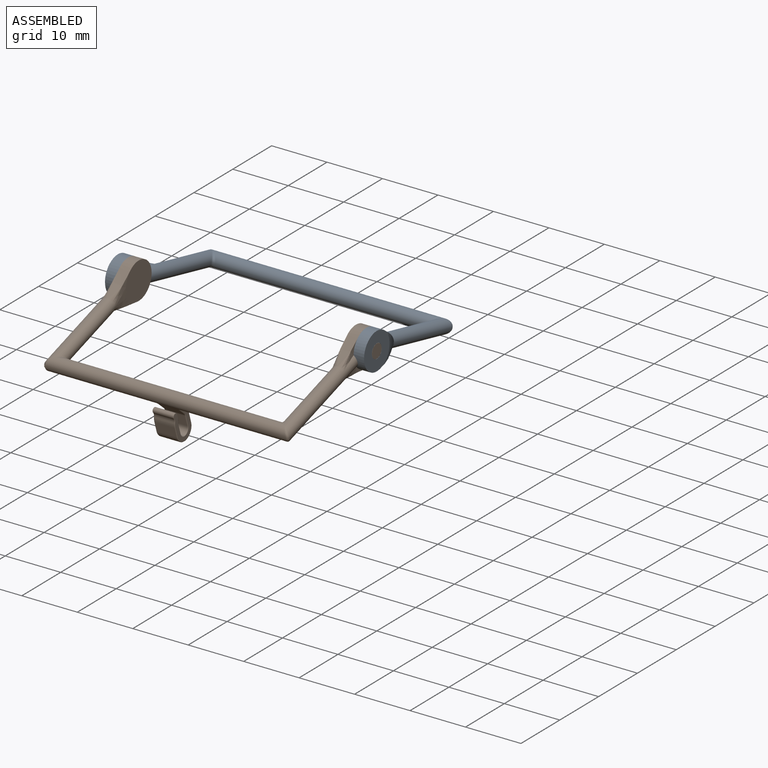
[diagram: assembled view]
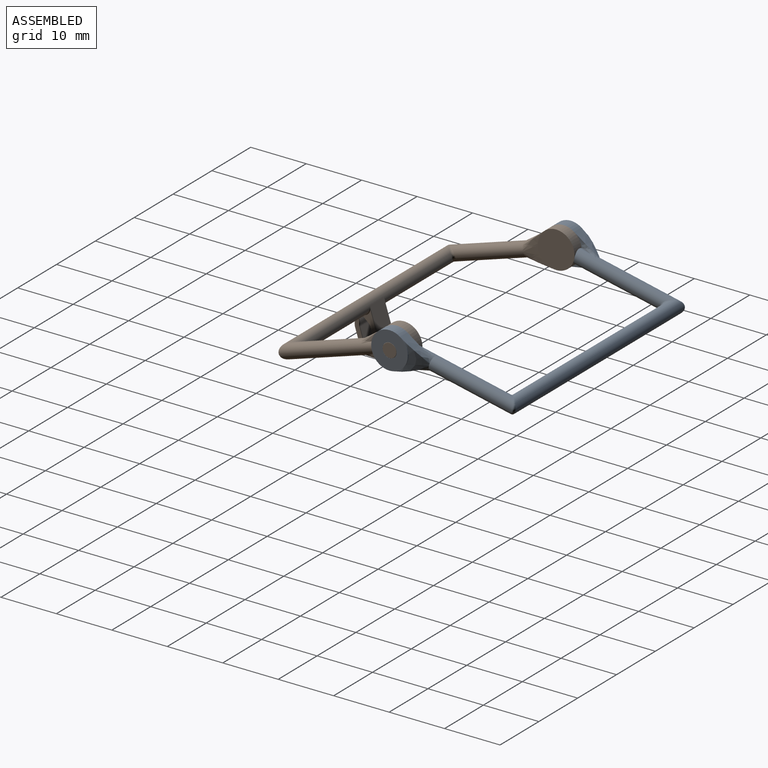
[diagram: assembled view, second angle]
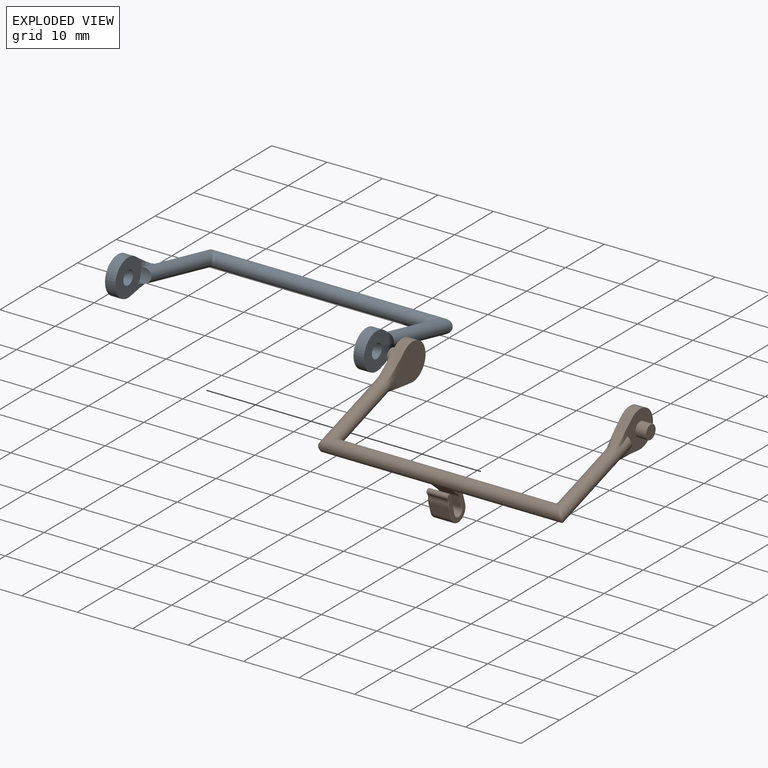
[diagram: exploded view]
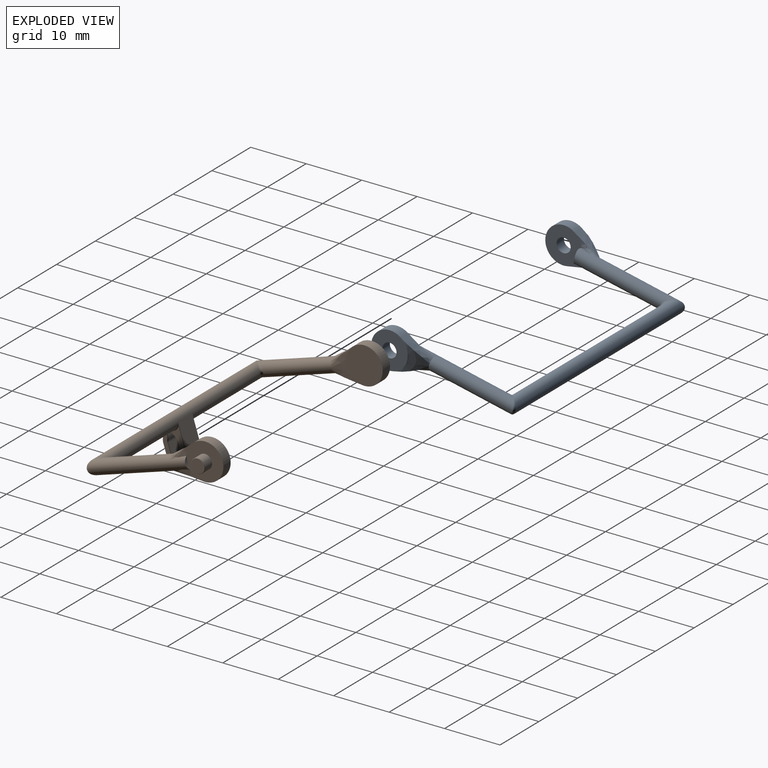
[diagram: exploded view, second angle]
ASSEMBLY  parts=2 mates=2
PART A: 34 faces, bbox 46.9x25.9x7.3 mm
  f0: cylinder r=3.3mm len=5.14mm, axis (-1,0,0), area 0mm2, adj f1,f33
  f1: torus R=3.25mm, axis (-1,0,0), area 0.4mm2, adj f0,f2,f31,f32
  f2: plane 6.51x6.51mm, normal (1,0,0), area 28.2mm2, adj f1,f3,f30,f31,f32
  f3: cylinder r=1.27mm len=2.54mm, axis (-1,0,0), area 15.2mm2, adj f2,f4
  f4: plane 6.8x6.8mm, normal (-1,0,0), area 29.2mm2, adj f3,f5,f25,f26,f27,f28,f29
  f5: bspline ~5.08x2.61mm, area 8.4mm2, adj f4,f6,f25,f29,f30,f33
  f6: cylinder r=1.27mm len=18.67mm, axis (0,1,0), area 127.3mm2, adj f5,f7,f23,f24,f26,f27,f28,f29
  f7: bspline ~2.54x1.65mm, area 0mm2, adj f6,f8
  f8: cylinder r=1.27mm len=41.66mm, axis (-1,0,0), area 324mm2, adj f7,f9,f22,f24
  f9: bspline ~2.54x1.27mm, area 0mm2, adj f8,f10
  f10: cylinder r=1.27mm len=18.67mm, axis (0,-1,0), area 127.3mm2, adj f9,f11,f16,f17,f18,f19,f20,f21
  f11: bspline ~5.08x2.61mm, area 8.4mm2, adj f10,f12,f15,f16,f21
  f12: cylinder r=3.3mm len=6.6mm, axis (1,0,0), area 25.6mm2, adj f11,f13,f15,f16,f17
  f13: plane 6.6x6.6mm, normal (-1,0,0), area 29.2mm2, adj f12,f14
  f14: cylinder r=1.27mm len=2.54mm, axis (1,0,0), area 15.2mm2, adj f13,f15
  f15: plane 6.8x6.8mm, normal (1,0,0), area 29.2mm2, adj f11,f12,f14,f17,f18,f19,f21
  f16: bspline ~6.09x5.08mm, area 10.1mm2, adj f10,f11,f12,f17
  f17: bspline ~5.08x2.61mm, area 8.4mm2, adj f10,f12,f15,f16,f18
  f18: bspline ~5.08x2.72mm, area 3.1mm2, adj f10,f15,f17,f19
  f19: cylinder r=3.3mm len=4.21mm, axis (-1,0,0), area 4.2mm2, adj f10,f15,f18,f20,f21
  f20: cylinder r=1.27mm len=2.51mm, axis (0,-1,0), area 0.7mm2, adj f10,f19,f21
  f21: bspline ~4.94x1.94mm, area 3.1mm2, adj f10,f11,f15,f19,f20
  f22: bspline ~2.54x1.65mm, area 0mm2, adj f8,f10
  f23: cylinder r=1.27mm len=2.51mm, axis (0,1,0), area 0.7mm2, adj f6,f28,f29
  f24: bspline ~2.54x1.27mm, area 0mm2, adj f6,f8
  f25: cylinder r=3.3mm len=6.6mm, axis (-1,0,0), area 24.1mm2, adj f4,f5,f26,f30
  f26: bspline ~5.08x2.61mm, area 8.4mm2, adj f4,f6,f25,f27,f30,f33
  f27: bspline ~5.08x2.72mm, area 3.1mm2, adj f4,f6,f26,f28
  f28: cylinder r=3.3mm len=4.21mm, axis (1,0,0), area 4.2mm2, adj f4,f6,f23,f27,f29
  f29: bspline ~5.08x2.72mm, area 3.1mm2, adj f4,f5,f6,f23,f28
  f30: torus R=3.25mm, axis (-1,0,0), area 1mm2, adj f2,f5,f25,f26,f31,f32
  f31: bspline ~1.24x0.76mm, area 0.1mm2, adj f1,f2,f30,f33
  f32: bspline ~0.99x0.64mm, area 0.1mm2, adj f1,f2,f30,f33
  f33: bspline ~6.09x5.08mm, area 10.2mm2, adj f0,f5,f6,f26,f31,f32
PART B: 80 faces, bbox 46.9x27.3x10.9 mm
  f0: cylinder r=1.27mm len=18.6mm, axis (0,1,0), area 120.3mm2, adj f1,f7,f8,f9,f10,f11,f12,f79
  f1: cylinder r=3.3mm len=4.22mm, axis (1,0,0), area 1mm2, adj f0,f2,f7,f11
  f2: plane 6.8x6.8mm, normal (-1,0,0), area 29.2mm2, adj f1,f3,f5,f7,f11
  f3: cylinder r=1.27mm len=2.54mm, axis (1,0,0), area 15.2mm2, adj f2,f4
  f4: plane 2.54x2.54mm, normal (-1,0,0), area 5.1mm2, adj f3
  f5: cylinder r=3.3mm len=6.6mm, axis (1,0,0), area 25.3mm2, adj f2,f6,f8,f10
  f6: plane 6.61x6.61mm, normal (1,0,0), area 34.3mm2, adj f5,f8,f9,f10
  f7: bspline ~5.08x3.55mm, area 3.2mm2, adj f0,f1,f2,f8
  f8: bspline ~5.08x2.23mm, area 9.8mm2, adj f0,f5,f6,f7,f9
  f9: bspline ~6.22x5.08mm, area 10.9mm2, adj f0,f6,f8,f10
  f10: bspline ~5.08x2.23mm, area 9.8mm2, adj f0,f5,f6,f9,f11
  f11: bspline ~5.08x3.55mm, area 3mm2, adj f0,f1,f2,f10
  f12: bspline ~2.54x1.27mm, area 0.9mm2, adj f0,f13
  f13: cylinder r=1.27mm len=43.44mm, axis (-1,0,0), area 315.6mm2, adj f12,f14,f54,f55,f56,f57,f58,f59
  f14: bspline ~0.63x0.6mm, area 0.1mm2, adj f13,f15,f60
  f15: cylinder r=0.13mm len=2.06mm, axis (0,-0.53,0.85), area 0.4mm2, adj f14,f16,f53,f54
  f16: plane 6.05x3.56mm, normal (1,0,0), area 9.4mm2, adj f15,f17,f43,f44,f45,f46,f47,f48
  f17: torus R=1.08mm, axis (1,0,0), area 0.1mm2, adj f16,f18,f43,f52
  f18: cylinder r=0.95mm len=3.56mm, axis (-1,0,0), area 1.5mm2, adj f17,f19,f41,f42
  f19: plane 3.56x1.91mm, normal (0,1,0), area 6.8mm2, adj f18,f20,f40,f43
  f20: cylinder r=0.13mm len=1.91mm, axis (0,0,1), area 0.4mm2, adj f19,f21,f39,f41
  f21: plane 6.05x3.56mm, normal (-1,0,0), area 9.4mm2, adj f20,f22,f28,f29,f30,f31,f32,f35
  f22: torus R=1.78mm, axis (1,0,0), area 0.2mm2, adj f21,f23,f28,f38
  f23: cylinder r=1.91mm len=3.56mm, axis (-1,0,0), area 3mm2, adj f22,f24,f26,f49
  f24: plane 3.56x1.91mm, normal (0,-1,0), area 6.8mm2, adj f23,f25,f28,f48
  f25: cylinder r=1.91mm len=3.81mm, axis (-1,0,0), area 21.3mm2, adj f24,f29,f47,f58
  f26: cylinder r=0.95mm len=3.56mm, axis (-1,0,0), area 3mm2, adj f23,f27,f38,f50
  f27: cylinder r=0.48mm len=3.56mm, axis (-1,0,0), area 5.3mm2, adj f26,f37,f42,f51
  f28: cylinder r=0.13mm len=1.91mm, axis (0,0,-1), area 0.4mm2, adj f21,f22,f24,f29
  f29: torus R=1.78mm, axis (1,0,0), area 1.2mm2, adj f21,f25,f28,f30
  f30: cylinder r=0.13mm len=5.08mm, axis (0,0,1), area 0.9mm2, adj f21,f29,f57,f58
  f31: cylinder r=0.13mm len=2.06mm, axis (0,0.53,-0.85), area 0.4mm2, adj f21,f32,f54,f55
  f32: torus R=1.08mm, axis (1,0,0), area 0.1mm2, adj f21,f31,f33,f35
  f33: cylinder r=0.95mm len=3.56mm, axis (-1,0,0), area 1.9mm2, adj f32,f34,f53,f54
  f34: plane 3.56x1.91mm, normal (0,-1,0), area 6.8mm2, adj f33,f35,f40,f45
  f35: cylinder r=0.13mm len=1.91mm, axis (0,0,-1), area 0.4mm2, adj f21,f32,f34,f39
  f36: torus R=1.78mm, axis (1,0,0), area 0.3mm2, adj f21,f37,f41,f42
  f37: torus R=0.35mm, axis (1,0,0), area 0.3mm2, adj f21,f27,f36,f38
  f38: torus R=1.08mm, axis (1,0,0), area 0.2mm2, adj f21,f22,f26,f37
  f39: torus R=1.08mm, axis (1,0,0), area 0.6mm2, adj f20,f21,f35,f40
  f40: cylinder r=0.95mm len=3.56mm, axis (-1,0,0), area 10.6mm2, adj f19,f34,f39,f44
  f41: torus R=1.08mm, axis (1,0,0), area 0.1mm2, adj f18,f20,f21,f36
  f42: cylinder r=1.91mm len=3.56mm, axis (-1,0,0), area 5.9mm2, adj f18,f27,f36,f52
  f43: cylinder r=0.13mm len=1.91mm, axis (0,0,-1), area 0.4mm2, adj f16,f17,f19,f44
  f44: torus R=1.08mm, axis (1,0,0), area 0.6mm2, adj f16,f40,f43,f45
  f45: cylinder r=0.13mm len=1.91mm, axis (0,0,1), area 0.4mm2, adj f16,f34,f44,f53
  f46: cylinder r=0.13mm len=5.08mm, axis (0,0,-1), area 0.9mm2, adj f16,f47,f58,f59
  f47: torus R=1.78mm, axis (1,0,0), area 1.2mm2, adj f16,f25,f46,f48
  f48: cylinder r=0.13mm len=1.91mm, axis (0,0,1), area 0.4mm2, adj f16,f24,f47,f49
  f49: torus R=1.78mm, axis (1,0,0), area 0.2mm2, adj f16,f23,f48,f50
  f50: torus R=1.08mm, axis (1,0,0), area 0.2mm2, adj f16,f26,f49,f51
  f51: torus R=0.35mm, axis (1,0,0), area 0.3mm2, adj f16,f27,f50,f52
  f52: torus R=1.78mm, axis (1,0,0), area 0.3mm2, adj f16,f17,f42,f51
  f53: torus R=1.08mm, axis (1,0,0), area 0.1mm2, adj f15,f16,f33,f45
  f54: plane 3.56x2mm, normal (0,-0.85,-0.53), area 8.4mm2, adj f13,f15,f31,f33
  f55: bspline ~0.63x0.6mm, area 0.1mm2, adj f13,f31,f56
  f56: torus R=1.4mm, axis (1,0,0), area 0.4mm2, adj f13,f21,f55,f57
  f57: bspline ~0.82x0.25mm, area 0.1mm2, adj f13,f30,f56
  f58: plane 5.08x3.56mm, normal (0,1,0), area 18.1mm2, adj f13,f25,f30,f46
  f59: bspline ~0.82x0.25mm, area 0.1mm2, adj f13,f46,f60
  f60: torus R=1.4mm, axis (1,0,0), area 0.4mm2, adj f13,f14,f16,f59
  f61: bspline ~2.54x1.27mm, area 0mm2, adj f13,f62
  f62: cylinder r=1.27mm len=18.6mm, axis (0,-1,0), area 120.3mm2, adj f61,f63,f73,f74,f75,f76,f77,f78
  f63: bspline ~6.22x5.08mm, area 10.8mm2, adj f62,f64,f71,f72,f73,f77
  f64: bspline ~4.34x1.93mm, area 0.1mm2, adj f63,f65,f66,f72,f73
  f65: torus R=3.25mm, axis (1,0,0), area 1mm2, adj f64,f66,f71,f72
  f66: cylinder r=3.3mm len=6.6mm, axis (-1,0,0), area 63.1mm2, adj f64,f65,f67,f71,f73,f77
  f67: plane 6.8x6.8mm, normal (1,0,0), area 29.2mm2, adj f66,f68,f74,f75,f76
  f68: cylinder r=1.27mm len=2.54mm, axis (-1,0,0), area 14.8mm2, adj f67,f69
  f69: torus R=1.22mm, axis (1,0,0), area 0.6mm2, adj f68,f70
  f70: plane 2.44x2.44mm, normal (1,0,0), area 4.7mm2, adj f69
  f71: bspline ~4.35x1.94mm, area 0.1mm2, adj f63,f65,f66,f72,f77
  f72: plane 6.56x6.52mm, normal (-1,0,0), area 33.6mm2, adj f63,f64,f65,f71
  f73: bspline ~5.08x2.23mm, area 9.7mm2, adj f62,f63,f64,f66,f74
  f74: bspline ~5.08x3.55mm, area 3.2mm2, adj f62,f67,f73,f75
  f75: cylinder r=3.3mm len=4.22mm, axis (-1,0,0), area 1mm2, adj f62,f67,f74,f76
  f76: bspline ~5.08x3.55mm, area 3.2mm2, adj f62,f67,f75,f77
  f77: bspline ~5.08x2.23mm, area 9.7mm2, adj f62,f63,f66,f71,f76
  f78: bspline ~2.54x1.65mm, area 0mm2, adj f13,f62
  f79: bspline ~2.54x1.65mm, area 0mm2, adj f0,f13
PLACE A rot(axis=(0,0.99,-0.11),180deg) t=(-1.92,-4.93,-23.85)mm
PLACE B rot(axis=(1,0,0),17.7deg) t=(-1.92,-4.93,-23.85)mm
MATE revolute B.f66 <-> A.f12  axis (1,0,0) through (21.45,-4.93,-23.85)mm
MATE revolute B.f1 <-> A.f0  axis (-1,0,0) through (-25.29,-4.93,-23.85)mm
